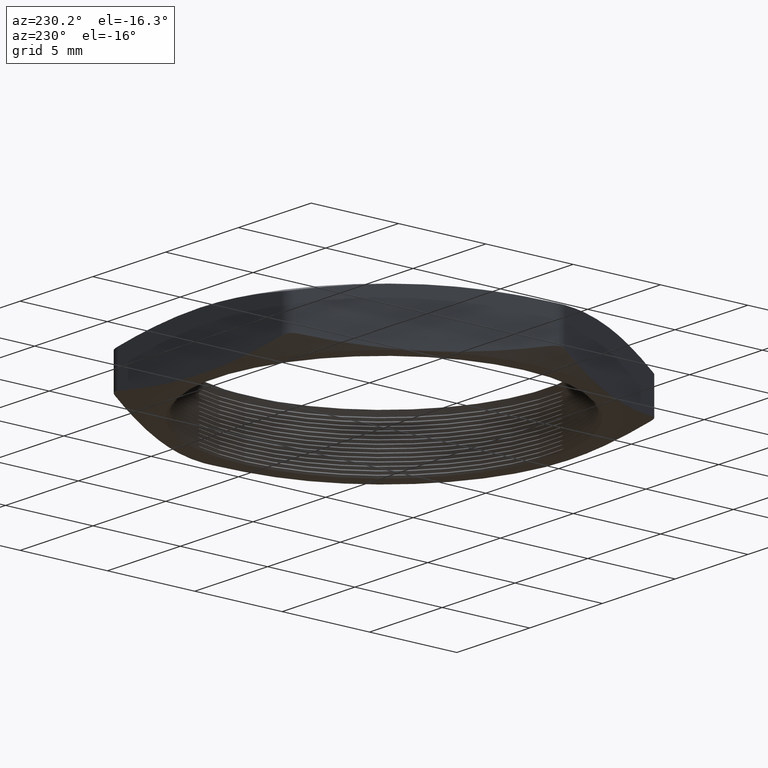
[diagram: clean part render]
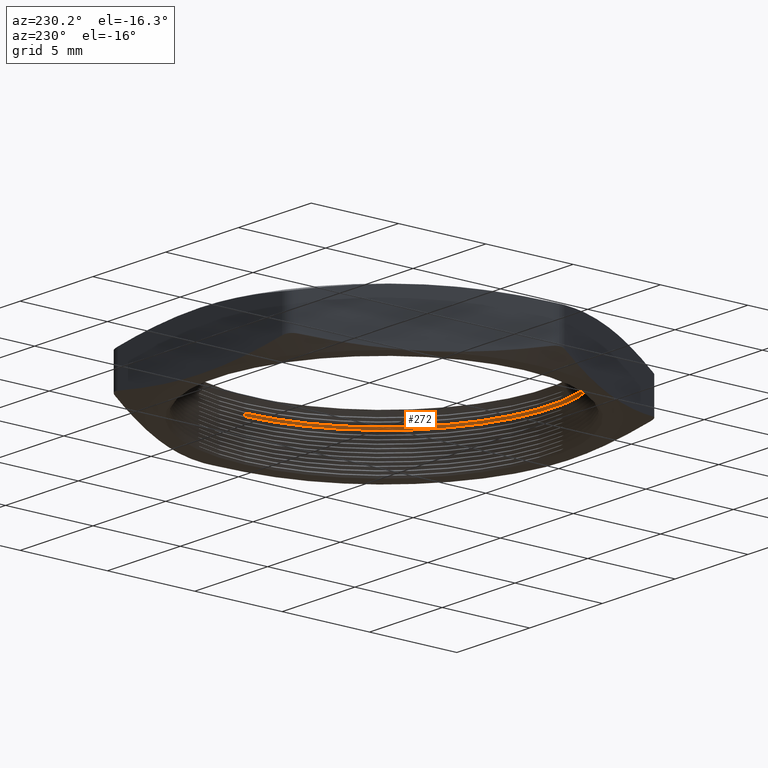
[diagram: same view with one face highlighted and labeled with its STEP entity id]
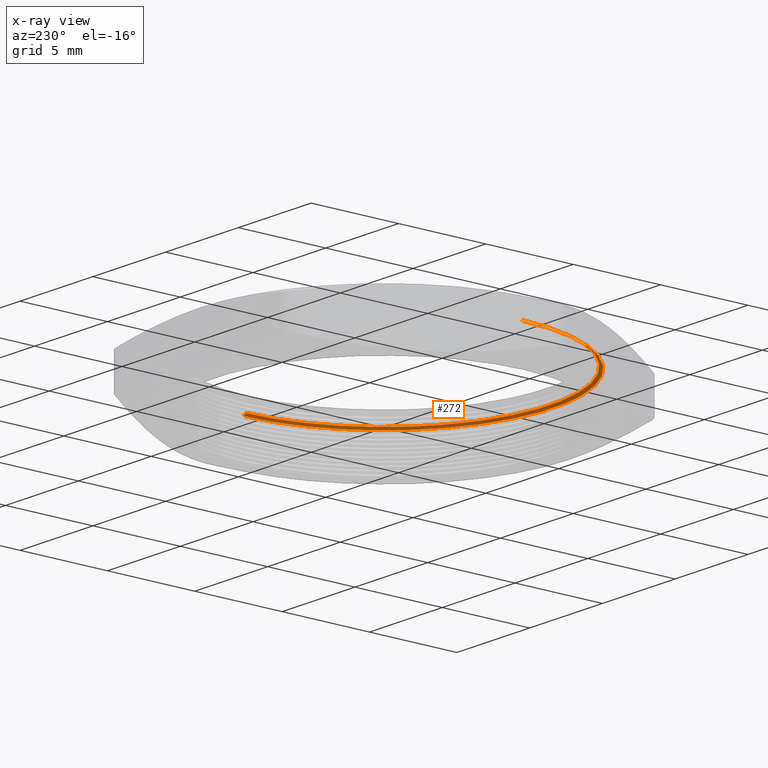
[diagram: x-ray of the same camera — body ghosted, the highlighted face saturated]
A machine part, auxiliary view. The second image highlights one B-rep face of the part: STEP entity #272.
The next image is the same camera in x-ray: the body ghosted, the highlighted face saturated — about 12% of this face is hidden behind the body in this view.
In plain terms, the highlighted conical surface has half-angle 60 deg.
Its self-contained STEP definition (entity closure, byte-faithful):
#266 = VERTEX_POINT ( 'NONE', #589 ) ;
#268 = EDGE_CURVE ( 'NONE', #269, #266, #588, .T. ) ;
#269 = VERTEX_POINT ( 'NONE', #583 ) ;
#272 = ADVANCED_FACE ( 'NONE', ( #640 ), #639, .F. ) ;
#273 = EDGE_LOOP ( 'NONE', ( #274, #304, #306, #307 ) ) ;
#274 = ORIENTED_EDGE ( 'NONE', *, *, #275, .F. ) ;
#275 = EDGE_CURVE ( 'NONE', #302, #303, #633, .T. ) ;
#302 = VERTEX_POINT ( 'NONE', #643 ) ;
#303 = VERTEX_POINT ( 'NONE', #705 ) ;
#304 = ORIENTED_EDGE ( 'NONE', *, *, #305, .T. ) ;
#305 = EDGE_CURVE ( 'NONE', #302, #269, #704, .T. ) ;
#306 = ORIENTED_EDGE ( 'NONE', *, *, #268, .T. ) ;
#307 = ORIENTED_EDGE ( 'NONE', *, *, #308, .F. ) ;
#308 = EDGE_CURVE ( 'NONE', #303, #266, #700, .T. ) ;
#583 = CARTESIAN_POINT ( 'NONE',  ( 0.3799999999999999500, 4.653657836759941700E-017, 0.08733974596215581000 ) ) ;
#584 = DIRECTION ( 'NONE',  ( -1.000000000000000000, 0.0000000000000000000, 0.0000000000000000000 ) ) ;
#585 = DIRECTION ( 'NONE',  ( 0.0000000000000000000, 0.0000000000000000000, -1.000000000000000000 ) ) ;
#586 = CARTESIAN_POINT ( 'NONE',  ( 0.0000000000000000000, 0.0000000000000000000, 0.08733974596215581000 ) ) ;
#587 = AXIS2_PLACEMENT_3D ( 'NONE', #586, #585, #584 ) ;
#588 = CIRCLE ( 'NONE', #587, 0.3799999999999999500 ) ;
#589 = CARTESIAN_POINT ( 'NONE',  ( -0.3799999999999999500, 0.0000000000000000000, 0.08733974596215581000 ) ) ;
#630 = DIRECTION ( 'NONE',  ( -1.000000000000000000, 0.0000000000000000000, 0.0000000000000000000 ) ) ;
#631 = DIRECTION ( 'NONE',  ( 0.0000000000000000000, 0.0000000000000000000, -1.000000000000000000 ) ) ;
#632 = AXIS2_PLACEMENT_3D ( 'NONE', #638, #631, #630 ) ;
#633 = CIRCLE ( 'NONE', #632, 0.3730717967697243500 ) ;
#634 = DIRECTION ( 'NONE',  ( -1.000000000000000000, 0.0000000000000000000, 0.0000000000000000000 ) ) ;
#635 = DIRECTION ( 'NONE',  ( 0.0000000000000000000, 0.0000000000000000000, -1.000000000000000000 ) ) ;
#636 = CARTESIAN_POINT ( 'NONE',  ( 0.0000000000000000000, 0.0000000000000000000, 0.08733974596215581000 ) ) ;
#637 = AXIS2_PLACEMENT_3D ( 'NONE', #636, #635, #634 ) ;
#638 = CARTESIAN_POINT ( 'NONE',  ( 0.0000000000000000000, 0.0000000000000000000, 0.09133974596215574400 ) ) ;
#639 = CONICAL_SURFACE ( 'NONE', #637, 0.3799999999999999500, 1.047197551196607200 ) ;
#640 = FACE_OUTER_BOUND ( 'NONE', #273, .T. ) ;
#643 = CARTESIAN_POINT ( 'NONE',  ( 0.3730717967697243500, 0.0000000000000000000, 0.09133974596215574400 ) ) ;
#697 = DIRECTION ( 'NONE',  ( -0.8660254037844432600, 0.0000000000000000000, -0.4999999999999919000 ) ) ;
#698 = VECTOR ( 'NONE', #697, 39.37007874015748100 ) ;
#699 = CARTESIAN_POINT ( 'NONE',  ( -0.3799999999999999500, 0.0000000000000000000, 0.08733974596215581000 ) ) ;
#700 = LINE ( 'NONE', #699, #698 ) ;
#701 = DIRECTION ( 'NONE',  ( 0.8660254037844432600, 1.060575238724912700E-016, -0.4999999999999919000 ) ) ;
#702 = VECTOR ( 'NONE', #701, 39.37007874015748100 ) ;
#703 = CARTESIAN_POINT ( 'NONE',  ( 0.3799999999999999500, 4.653657836759941700E-017, 0.08733974596215581000 ) ) ;
#704 = LINE ( 'NONE', #703, #702 ) ;
#705 = CARTESIAN_POINT ( 'NONE',  ( -0.3730717967697243500, 4.611234827210944500E-017, 0.09133974596215574400 ) ) ;